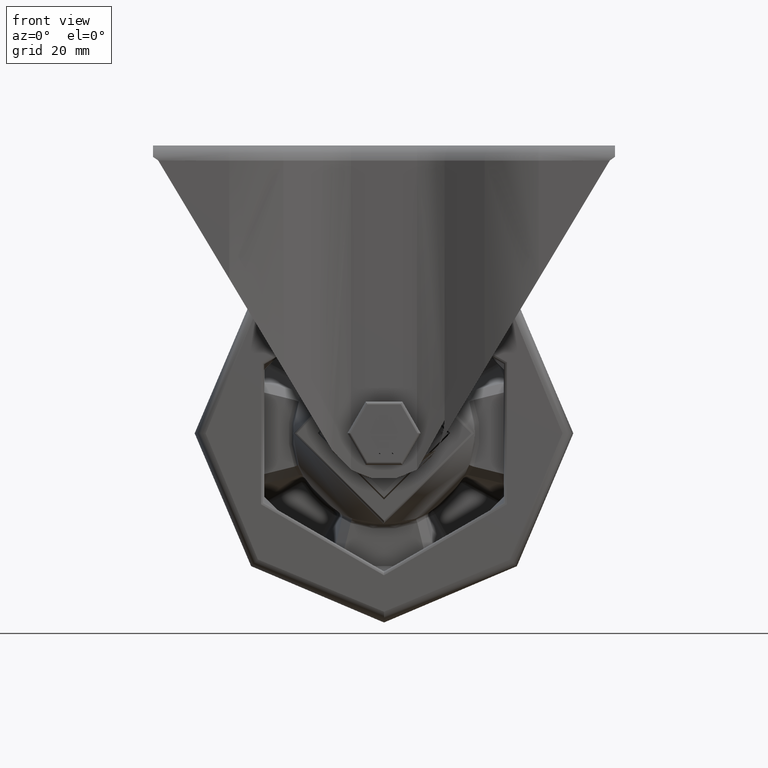
[diagram: clean part render]
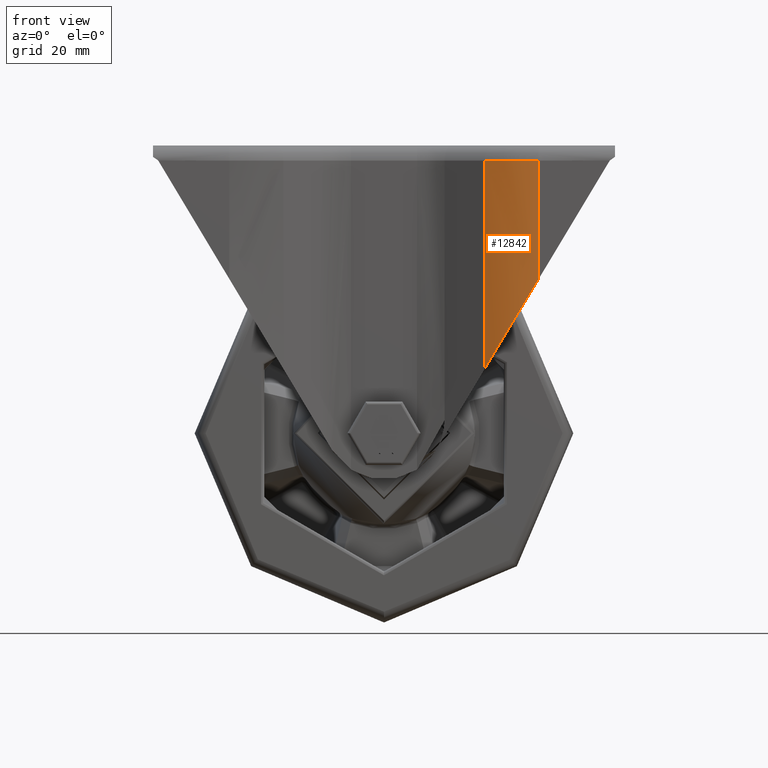
[diagram: same view with one face highlighted and labeled with its STEP entity id]
A machine part, front view. The second image highlights one B-rep face of the part: STEP entity #12842.
In plain terms, the highlighted cylindrical surface (partial cylindrical patch) has radius 30.5 mm, axis along (0, 0, -1).
Its self-contained STEP definition (entity closure, byte-faithful):
#1348=ELLIPSE('',#13922,59.2643544886226,30.5);
#1380=CYLINDRICAL_SURFACE('',#13920,30.5);
#1699=CIRCLE('',#13921,30.5);
#2289=FACE_OUTER_BOUND('',#3125,.T.);
#3125=EDGE_LOOP('',(#8912,#8913,#8914,#8915));
#4120=LINE('',#18551,#4818);
#4121=LINE('',#18557,#4819);
#4818=VECTOR('',#15370,10.);
#4819=VECTOR('',#15377,10.);
#5531=VERTEX_POINT('',#18547);
#5532=VERTEX_POINT('',#18549);
#5533=VERTEX_POINT('',#18553);
#5534=VERTEX_POINT('',#18555);
#6828=EDGE_CURVE('',#5531,#5532,#4120,.T.);
#6829=EDGE_CURVE('',#5531,#5533,#1699,.T.);
#6830=EDGE_CURVE('',#5532,#5534,#1348,.T.);
#6831=EDGE_CURVE('',#5534,#5533,#4121,.T.);
#8912=ORIENTED_EDGE('',*,*,#6829,.F.);
#8913=ORIENTED_EDGE('',*,*,#6828,.T.);
#8914=ORIENTED_EDGE('',*,*,#6830,.T.);
#8915=ORIENTED_EDGE('',*,*,#6831,.T.);
#12842=ADVANCED_FACE('',(#2289),#1380,.T.);
#13920=AXIS2_PLACEMENT_3D('',#18552,#15371,#15372);
#13921=AXIS2_PLACEMENT_3D('',#18554,#15373,#15374);
#13922=AXIS2_PLACEMENT_3D('',#18556,#15375,#15376);
#15370=DIRECTION('',(0.,0.,-1.));
#15371=DIRECTION('center_axis',(0.,0.,-1.));
#15372=DIRECTION('ref_axis',(-0.241921895599666,-0.970295726275997,0.));
#15373=DIRECTION('center_axis',(0.,0.,1.));
#15374=DIRECTION('ref_axis',(-0.241921895599667,-0.970295726275997,0.));
#15375=DIRECTION('center_axis',(-0.857404411747812,0.,0.514643249946396));
#15376=DIRECTION('ref_axis',(-0.514643249946396,3.74668056103874E-17,-0.857404411747812));
#15377=DIRECTION('',(0.,0.,1.));
#18547=CARTESIAN_POINT('',(507.601190505232,-85.6250108521297,-4.));
#18549=CARTESIAN_POINT('',(507.601190505232,-85.6250108521297,-59.0439552660886));
#18551=CARTESIAN_POINT('',(507.601190505232,-85.6250108521297,-126.));
#18552=CARTESIAN_POINT('Origin',(521.920073170202,-58.6951092699324,-126.));
#18553=CARTESIAN_POINT('',(521.920073170202,-89.1951092699324,-4.));
#18554=CARTESIAN_POINT('Origin',(521.920073170202,-58.6951092699324,-4.));
#18555=CARTESIAN_POINT('',(521.920073170202,-89.1951092699324,-35.1884530914782));
#18556=CARTESIAN_POINT('Origin',(521.920073170202,-58.6951092699324,-35.1884530914783));
#18557=CARTESIAN_POINT('',(521.920073170202,-89.1951092699324,-126.));